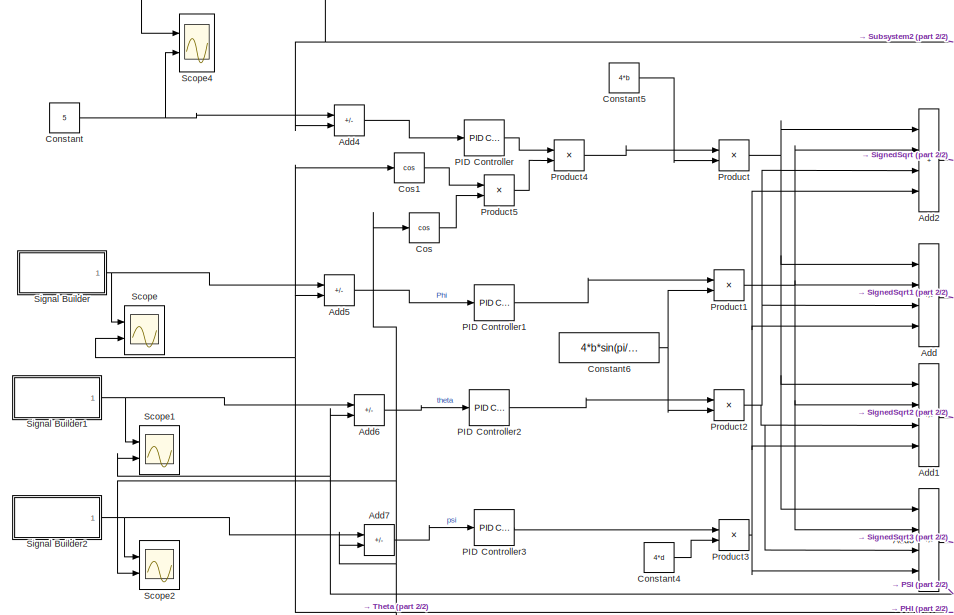
[diagram: root canvas - part 1/2, left side, full height]
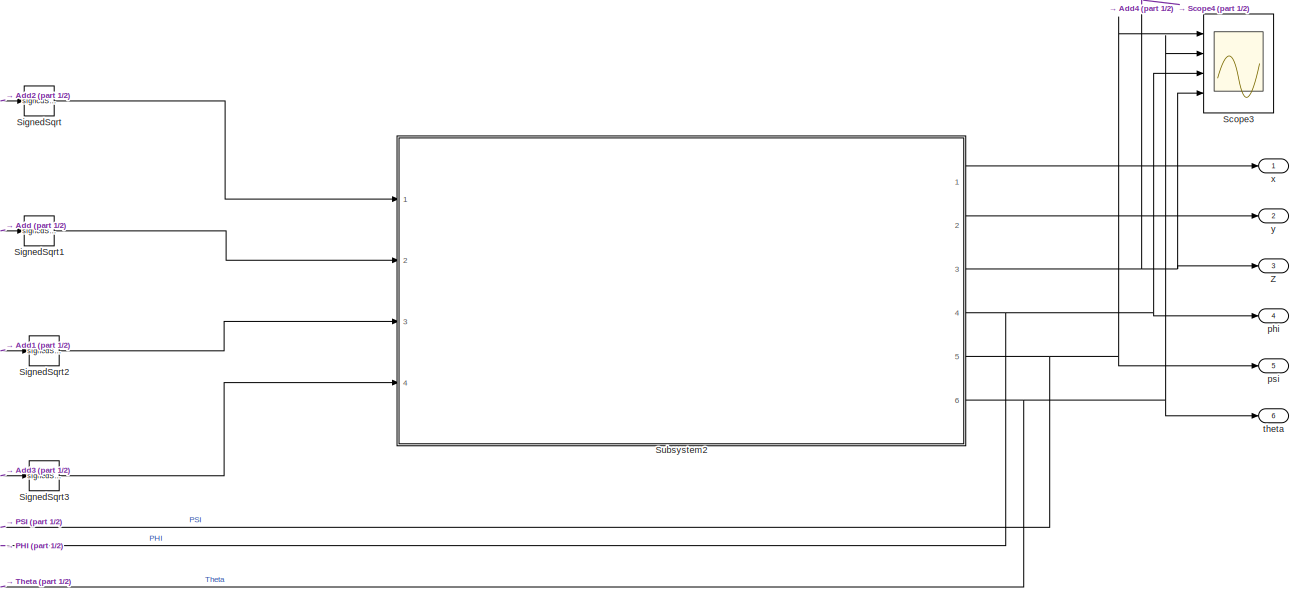
[diagram: root canvas - part 2/2, right side, full height]
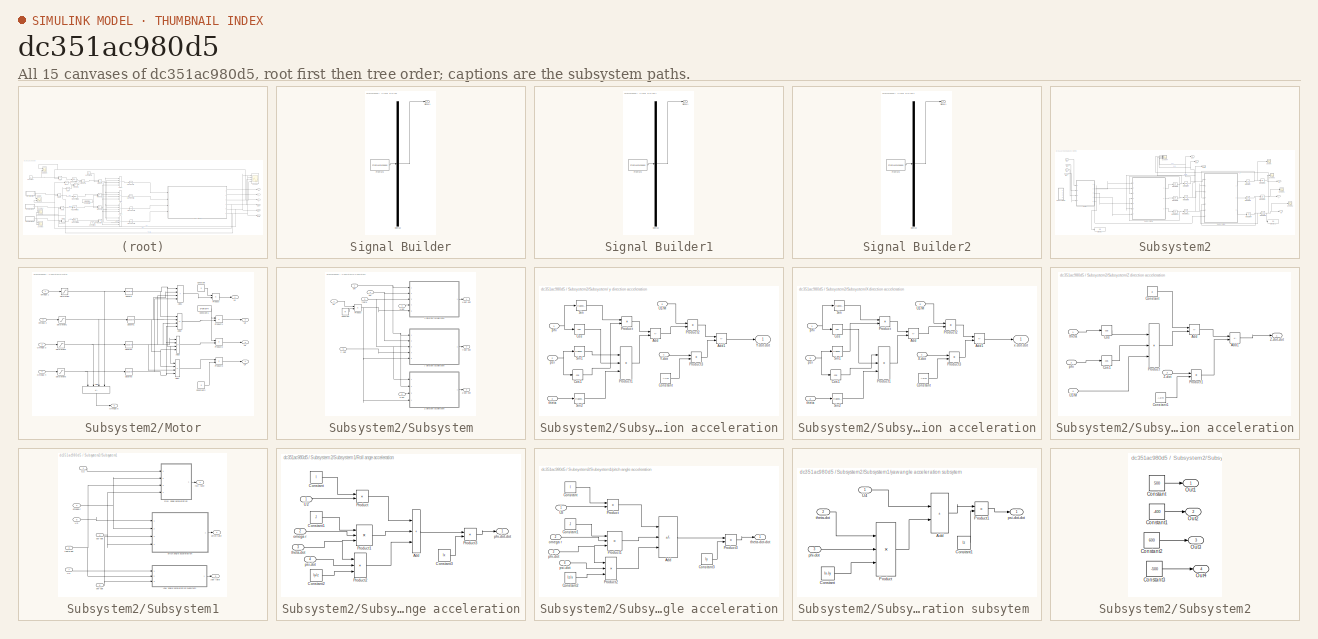
[diagram: thumbnail index - all 15 canvases of the model, root first then tree order]
MODEL slx_dc351ac980d5
KIND model
CONFIG AbsTol = auto
CONFIG EnableMultiTasking = off
CONFIG FixedStep = auto
CONFIG MaxStep = auto
CONFIG MinStep = auto
CONFIG RelTol = 1e-3
CONFIG SampleTimeConstraint = Unconstrained
CONFIG SolverName = VariableStepAuto
CONFIG StartTime = 0.0
CONFIG StopTime = 60
BLOCK [Sum] Add
  IconShape = rectangular
  Inputs = +-+-
  Ports = [4, 1]
BLOCK [Sum] Add1
  IconShape = rectangular
  Inputs = +--+
  Ports = [4, 1]
BLOCK [Sum] Add2
  IconShape = rectangular
  Inputs = ++++
  Ports = [4, 1]
BLOCK [Sum] Add3
  IconShape = rectangular
  Inputs = ++--
  Ports = [4, 1]
BLOCK [Sum] Add4
  IconShape = rectangular
  Inputs = +-
  Ports = [2, 1]
BLOCK [Sum] Add5
  IconShape = rectangular
  Inputs = +-
  Ports = [2, 1]
BLOCK [Sum] Add6
  IconShape = rectangular
  Inputs = +-
  Ports = [2, 1]
BLOCK [Sum] Add7
  IconShape = rectangular
  Inputs = +-
  Ports = [2, 1]
BLOCK [Constant] Constant
  Value = 5
BLOCK [Constant] Constant4
  Value = 4*d
BLOCK [Constant] Constant5
  Value = 4*b
BLOCK [Constant] Constant6
  Value = 4*b*sin(pi/4)*l
BLOCK [Trigonometry] Cos
  Operator = cos
  Ports = [1, 1]
BLOCK [Trigonometry] Cos1
  Operator = cos
  Ports = [1, 1]
BLOCK [Reference] PID Controller  REF=pid_lib/PID Controller
  Ports = [1, 1]
  SourceBlock = pid_lib/PID Controller
  SourceProductBaseCode = SL
  SourceType = PID 1dof
BLOCK [Reference] PID Controller1  REF=pid_lib/PID Controller
  Ports = [1, 1]
  SourceBlock = pid_lib/PID Controller
  SourceProductBaseCode = SL
  SourceType = PID 1dof
BLOCK [Reference] PID Controller2  REF=pid_lib/PID Controller
  Ports = [1, 1]
  SourceBlock = pid_lib/PID Controller
  SourceProductBaseCode = SL
  SourceType = PID 1dof
BLOCK [Reference] PID Controller3  REF=pid_lib/PID Controller
  Ports = [1, 1]
  SourceBlock = pid_lib/PID Controller
  SourceProductBaseCode = SL
  SourceType = PID 1dof
BLOCK [Product] Product
  Inputs = */
  Ports = [2, 1]
BLOCK [Product] Product1
  Inputs = */
  Ports = [2, 1]
BLOCK [Product] Product2
  Inputs = */
  Ports = [2, 1]
BLOCK [Product] Product3
  Inputs = */
  Ports = [2, 1]
BLOCK [Product] Product4
  Inputs = */
  Ports = [2, 1]
BLOCK [Product] Product5
  Ports = [2, 1]
BLOCK [Scope] Scope
  Floating = off
  NumInputPorts = 2
  Ports = [2]
  ScopeSpecificationString = Simulink.scopes.TimeScopeBlockCfg('CurrentConfiguration', extmgr.ConfigurationSet(extmgr.Configuration('Core','General UI',true),extmgr.Configuration('Core','Source UI',true),extmgr.Configuration('Sources','WiredSimulink',true,'DataLoggingVariableName','ScopeData1'),extmgr.Configuration('Visuals','Time Domain',true,'SerializedDisplays',{struct('MinYLimReal','-0.05724','MaxYLimReal','0.27821','YLab...<+1434ch>
BLOCK [Scope] Scope1
  Floating = off
  NumInputPorts = 2
  Ports = [2]
  ScopeSpecificationString = Simulink.scopes.TimeScopeBlockCfg('CurrentConfiguration', extmgr.ConfigurationSet(extmgr.Configuration('Core','General UI',true),extmgr.Configuration('Core','Source UI',true),extmgr.Configuration('Sources','WiredSimulink',true,'DataLoggingVariableName','ScopeData2'),extmgr.Configuration('Visuals','Time Domain',true,'SerializedDisplays',{struct('MinYLimReal','-0.06666','MaxYLimReal','0.25678','YLab...<+1409ch>
BLOCK [Scope] Scope2
  Floating = off
  NumInputPorts = 2
  Ports = [2]
  ScopeSpecificationString = Simulink.scopes.TimeScopeBlockCfg('CurrentConfiguration', extmgr.ConfigurationSet(extmgr.Configuration('Core','General UI',true),extmgr.Configuration('Core','Source UI',true),extmgr.Configuration('Sources','WiredSimulink',true,'DataLoggingVariableName','ScopeData3'),extmgr.Configuration('Visuals','Time Domain',true,'SerializedDisplays',{struct('MinYLimReal','-0.10878','MaxYLimReal','0.64531','YLab...<+1411ch>
BLOCK [Scope] Scope3
  Floating = off
  NumInputPorts = 4
  Ports = [4]
  ScopeSpecificationString = Simulink.scopes.TimeScopeBlockCfg('CurrentConfiguration', extmgr.ConfigurationSet(extmgr.Configuration('Core','General UI',true),extmgr.Configuration('Core','Source UI',true),extmgr.Configuration('Sources','WiredSimulink',true,'DataLoggingVariableName','ScopeData4'),extmgr.Configuration('Visuals','Time Domain',true,'SerializedDisplays',{struct('MinYLimReal','-248116.24795','MaxYLimReal','2233046.2...<+1495ch>
BLOCK [Scope] Scope4
  Floating = off
  NumInputPorts = 2
  Ports = [2]
  ScopeSpecificationString = Simulink.scopes.TimeScopeBlockCfg('CurrentConfiguration', extmgr.ConfigurationSet(extmgr.Configuration('Core','General UI',true),extmgr.Configuration('Core','Source UI',true),extmgr.Configuration('Sources','WiredSimulink',true,'DataLoggingVariableName','ScopeData5'),extmgr.Configuration('Visuals','Time Domain',true,'SerializedDisplays',{struct('MinYLimReal','-0.65301','MaxYLimReal','5.87706','YLab...<+1411ch>
BLOCK [SubSystem] Signal Builder
  ClipboardFcn = sigbuilder_block('clipboard');
  CloseFcn = sigbuilder_block('close');
  ContinueFcn = sigbuilder_block('continue');
  CopyFcn = sigbuilder_block('copy');
  DeleteFcn = sigbuilder_block('delete');
  LoadFcn = sigbuilder_block('load');
  MaskHideContents = on
  ModelCloseFcn = sigbuilder_block('modelClose');
  NameChangeFcn = sigbuilder_block('namechange');
  OpenFcn = sigbuilder_block('open',[367.8 129.6 550.8 400.2 ]);
  PauseFcn = sigbuilder_block('pause');
  Ports = [0, 1]
  PreSaveFcn = sigbuilder_block('preSave');
  RequestExecContextInheritance = off
  StartFcn = sigbuilder_block('start');
  StopFcn = sigbuilder_block('stop');
  Tag = STV Subsys
BLOCK [Demux] Signal Builder/Demux
  DisplayOption = none
  Outputs = 1
  Ports = [1, 1]
  Tag = STV Demux
BLOCK [FromWorkspace] Signal Builder/FromWs
  Tag = STV FromWs
  VariableName = tuvar
BLOCK [Outport] Signal Builder/Signal 1
  Tag = STV Outport
BLOCK [SubSystem] Signal Builder1
  ClipboardFcn = sigbuilder_block('clipboard');
  CloseFcn = sigbuilder_block('close');
  ContinueFcn = sigbuilder_block('continue');
  CopyFcn = sigbuilder_block('copy');
  DeleteFcn = sigbuilder_block('delete');
  LoadFcn = sigbuilder_block('load');
  MaskHideContents = on
  ModelCloseFcn = sigbuilder_block('modelClose');
  NameChangeFcn = sigbuilder_block('namechange');
  OpenFcn = sigbuilder_block('open',[367.8 129.6 550.8 400.2 ]);
  PauseFcn = sigbuilder_block('pause');
  Ports = [0, 1]
  PreSaveFcn = sigbuilder_block('preSave');
  RequestExecContextInheritance = off
  StartFcn = sigbuilder_block('start');
  StopFcn = sigbuilder_block('stop');
  Tag = STV Subsys
BLOCK [Demux] Signal Builder1/Demux
  DisplayOption = none
  Outputs = 1
  Ports = [1, 1]
  Tag = STV Demux
BLOCK [FromWorkspace] Signal Builder1/FromWs
  Tag = STV FromWs
  VariableName = tuvar
BLOCK [Outport] Signal Builder1/Signal 1
  Tag = STV Outport
BLOCK [SubSystem] Signal Builder2
  ClipboardFcn = sigbuilder_block('clipboard');
  CloseFcn = sigbuilder_block('close');
  ContinueFcn = sigbuilder_block('continue');
  CopyFcn = sigbuilder_block('copy');
  DeleteFcn = sigbuilder_block('delete');
  LoadFcn = sigbuilder_block('load');
  MaskHideContents = on
  ModelCloseFcn = sigbuilder_block('modelClose');
  NameChangeFcn = sigbuilder_block('namechange');
  OpenFcn = sigbuilder_block('open',[345.6 111.6 550.8 400.2 ]);
  PauseFcn = sigbuilder_block('pause');
  Ports = [0, 1]
  PreSaveFcn = sigbuilder_block('preSave');
  RequestExecContextInheritance = off
  StartFcn = sigbuilder_block('start');
  StopFcn = sigbuilder_block('stop');
  Tag = STV Subsys
BLOCK [Demux] Signal Builder2/Demux
  DisplayOption = none
  Outputs = 1
  Ports = [1, 1]
  Tag = STV Demux
BLOCK [FromWorkspace] Signal Builder2/FromWs
  Tag = STV FromWs
  VariableName = tuvar
BLOCK [Outport] Signal Builder2/Signal 1
  Tag = STV Outport
BLOCK [Sqrt] SignedSqrt
  IntermediateResultsDataTypeStr = single
  Operator = signedSqrt
  OutputSignalType = real
BLOCK [Sqrt] SignedSqrt1
  IntermediateResultsDataTypeStr = single
  Operator = signedSqrt
  OutputSignalType = real
BLOCK [Sqrt] SignedSqrt2
  IntermediateResultsDataTypeStr = single
  Operator = signedSqrt
  OutputSignalType = real
BLOCK [Sqrt] SignedSqrt3
  IntermediateResultsDataTypeStr = single
  Operator = signedSqrt
  OutputSignalType = real
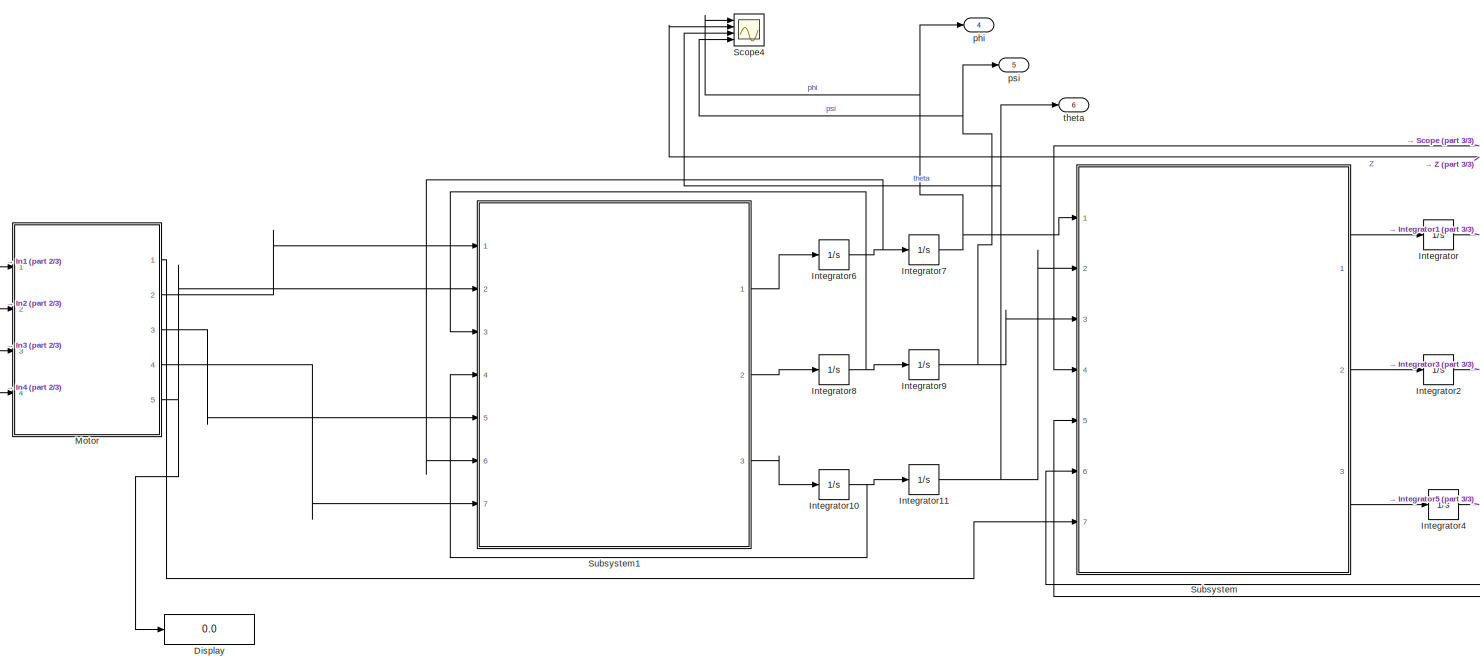
[diagram: Subsystem2 - part 1/3, most of the canvas]
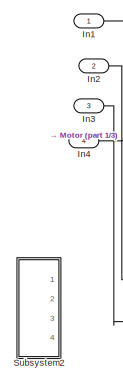
[diagram: Subsystem2 - part 2/3, middle left region]
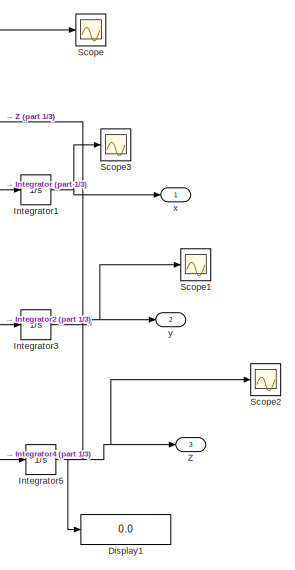
[diagram: Subsystem2 - part 3/3, right side, full height]
BLOCK [SubSystem] Subsystem2
  Ports = [4, 6]
  RequestExecContextInheritance = off
BLOCK [Display] Subsystem2/Display
  Decimation = 1
  Ports = [1]
BLOCK [Display] Subsystem2/Display1
  Decimation = 1
  Ports = [1]
BLOCK [Inport] Subsystem2/In1
BLOCK [Inport] Subsystem2/In2
  Port = 2
BLOCK [Inport] Subsystem2/In3
  Port = 3
BLOCK [Inport] Subsystem2/In4
  Port = 4
BLOCK [Integrator] Subsystem2/Integrator
  Ports = [1, 1]
BLOCK [Integrator] Subsystem2/Integrator1
  Ports = [1, 1]
BLOCK [Integrator] Subsystem2/Integrator10
  Ports = [1, 1]
BLOCK [Integrator] Subsystem2/Integrator11
  Ports = [1, 1]
  WrapState = on
BLOCK [Integrator] Subsystem2/Integrator2
  LimitOutput = on
  Ports = [1, 1]
BLOCK [Integrator] Subsystem2/Integrator3
  Ports = [1, 1]
BLOCK [Integrator] Subsystem2/Integrator4
  Ports = [1, 1]
BLOCK [Integrator] Subsystem2/Integrator5
  LimitOutput = on
  LowerSaturationLimit = 0
  Ports = [1, 1]
BLOCK [Integrator] Subsystem2/Integrator6
  Ports = [1, 1]
BLOCK [Integrator] Subsystem2/Integrator7
  Ports = [1, 1]
  WrapState = on
BLOCK [Integrator] Subsystem2/Integrator8
  Ports = [1, 1]
BLOCK [Integrator] Subsystem2/Integrator9
  Ports = [1, 1]
  WrapState = on
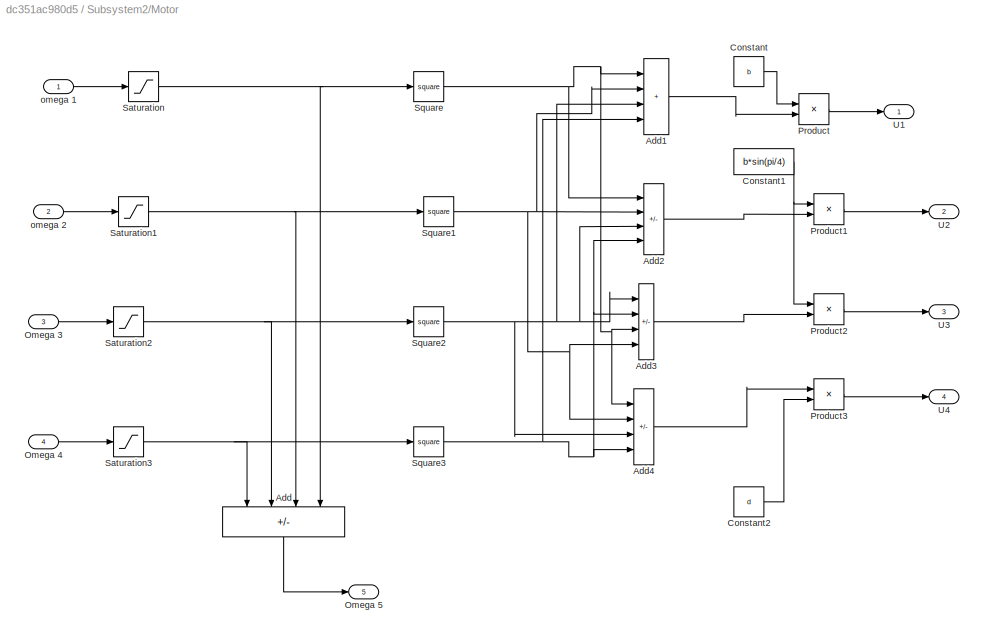
BLOCK [SubSystem] Subsystem2/Motor
  Ports = [4, 5]
  RequestExecContextInheritance = off
BLOCK [Sum] Subsystem2/Motor/Add
  IconShape = rectangular
  Inputs = -+-+
  NameLocation = left
  Ports = [4, 1]
BLOCK [Sum] Subsystem2/Motor/Add1
  IconShape = rectangular
  Inputs = ++++
  Ports = [4, 1]
BLOCK [Sum] Subsystem2/Motor/Add2
  IconShape = rectangular
  Inputs = +--+
  Ports = [4, 1]
BLOCK [Sum] Subsystem2/Motor/Add3
  IconShape = rectangular
  Inputs = --++
  Ports = [4, 1]
BLOCK [Sum] Subsystem2/Motor/Add4
  IconShape = rectangular
  Inputs = +-+-
  Ports = [4, 1]
BLOCK [Constant] Subsystem2/Motor/Constant
  Value = b
BLOCK [Constant] Subsystem2/Motor/Constant1
  Value = b*sin(pi/4)
BLOCK [Constant] Subsystem2/Motor/Constant2
  Value = d
BLOCK [Inport] Subsystem2/Motor/Omega 3
  Port = 3
BLOCK [Inport] Subsystem2/Motor/Omega 4
  Port = 4
BLOCK [Outport] Subsystem2/Motor/Omega 5 
  Port = 5
BLOCK [Product] Subsystem2/Motor/Product
  Ports = [2, 1]
BLOCK [Product] Subsystem2/Motor/Product1
  Ports = [2, 1]
BLOCK [Product] Subsystem2/Motor/Product2
  Ports = [2, 1]
BLOCK [Product] Subsystem2/Motor/Product3
  Ports = [2, 1]
BLOCK [Saturate] Subsystem2/Motor/Saturation
  LowerLimit = -10000
  UpperLimit = 10000
BLOCK [Saturate] Subsystem2/Motor/Saturation1
  LowerLimit = -10000
  UpperLimit = 10000
BLOCK [Saturate] Subsystem2/Motor/Saturation2
  LowerLimit = -10000
  UpperLimit = 10000
BLOCK [Saturate] Subsystem2/Motor/Saturation3
  LowerLimit = -10000
  UpperLimit = 10000
BLOCK [Math] Subsystem2/Motor/Square
  Operator = square
  Ports = [1, 1]
BLOCK [Math] Subsystem2/Motor/Square1
  Operator = square
  Ports = [1, 1]
BLOCK [Math] Subsystem2/Motor/Square2
  Operator = square
  Ports = [1, 1]
BLOCK [Math] Subsystem2/Motor/Square3
  Operator = square
  Ports = [1, 1]
BLOCK [Outport] Subsystem2/Motor/U1
BLOCK [Outport] Subsystem2/Motor/U2
  Port = 2
BLOCK [Outport] Subsystem2/Motor/U3
  Port = 3
BLOCK [Outport] Subsystem2/Motor/U4
  Port = 4
BLOCK [Inport] Subsystem2/Motor/omega 1
BLOCK [Inport] Subsystem2/Motor/omega 2
  Port = 2
BLOCK [Scope] Subsystem2/Scope
  Floating = off
  NumInputPorts = 1
  Ports = [1]
  ScopeSpecificationString = Simulink.scopes.TimeScopeBlockCfg('CurrentConfiguration', extmgr.ConfigurationSet(extmgr.Configuration('Core','General UI',true),extmgr.Configuration('Core','Source UI',true),extmgr.Configuration('Sources','WiredSimulink',true),extmgr.Configuration('Visuals','Time Domain',true,'SerializedDisplays',{struct('MinYLimReal','-1.00000','MaxYLimReal','1.00000','YLabelReal','','MinYLimMag','0.00000','MaxY...<+1330ch>
BLOCK [Scope] Subsystem2/Scope1
  Floating = off
  NumInputPorts = 1
  Ports = [1]
  ScopeSpecificationString = Simulink.scopes.TimeScopeBlockCfg('CurrentConfiguration', extmgr.ConfigurationSet(extmgr.Configuration('Core','General UI',true),extmgr.Configuration('Core','Source UI',true),extmgr.Configuration('Sources','WiredSimulink',true,'DataLoggingVariableName','ScopeData1'),extmgr.Configuration('Visuals','Time Domain',true,'SerializedDisplays',{struct('MinYLimReal','-1.00000','MaxYLimReal','1.00000','YLab...<+1370ch>
BLOCK [Scope] Subsystem2/Scope2
  Floating = off
  NumInputPorts = 1
  Ports = [1]
  ScopeSpecificationString = Simulink.scopes.TimeScopeBlockCfg('CurrentConfiguration', extmgr.ConfigurationSet(extmgr.Configuration('Core','General UI',true),extmgr.Configuration('Core','Source UI',true),extmgr.Configuration('Sources','WiredSimulink',true,'DataLoggingVariableName','ScopeData2'),extmgr.Configuration('Visuals','Time Domain',true,'SerializedDisplays',{struct('MinYLimReal','-7202.51155','MaxYLimReal','64822.60396...<+1386ch>
BLOCK [Scope] Subsystem2/Scope3
  Floating = off
  NumInputPorts = 1
  Ports = [1]
  ScopeSpecificationString = Simulink.scopes.TimeScopeBlockCfg('CurrentConfiguration', extmgr.ConfigurationSet(extmgr.Configuration('Core','General UI',true),extmgr.Configuration('Core','Source UI',true),extmgr.Configuration('Sources','WiredSimulink',true,'DataLoggingVariableName','ScopeData3'),extmgr.Configuration('Visuals','Time Domain',true,'SerializedDisplays',{struct('MinYLimReal','-1.00000','MaxYLimReal','1.00000','YLab...<+1370ch>
BLOCK [Scope] Subsystem2/Scope4
  Floating = off
  NumInputPorts = 4
  Ports = [4]
  ScopeSpecificationString = Simulink.scopes.TimeScopeBlockCfg('CurrentConfiguration', extmgr.ConfigurationSet(extmgr.Configuration('Core','General UI',true,'DisplayFullSourceName',true),extmgr.Configuration('Core','Source UI',true),extmgr.Configuration('Sources','WiredSimulink',true,'DataLoggingVariableName','ScopeData4'),extmgr.Configuration('Visuals','Time Domain',true,'SerializedDisplays',{struct('MinYLimReal','0.88104','...<+1593ch>
BLOCK [SubSystem] Subsystem2/Subsystem
  Ports = [7, 3]
  RequestExecContextInheritance = off
BLOCK [SubSystem] Subsystem2/Subsystem/ y direction acceleration
  Ports = [5, 1]
  RequestExecContextInheritance = off
BLOCK [Sum] Subsystem2/Subsystem/ y direction acceleration/Add
  IconShape = rectangular
  Inputs = -+
  Ports = [2, 1]
BLOCK [Sum] Subsystem2/Subsystem/ y direction acceleration/Add1
  IconShape = rectangular
  Inputs = +-
  Ports = [2, 1]
BLOCK [Constant] Subsystem2/Subsystem/ y direction acceleration/Constant
  Value = Ay/m
BLOCK [Trigonometry] Subsystem2/Subsystem/ y direction acceleration/Cos
  Operator = cos
  Ports = [1, 1]
BLOCK [Trigonometry] Subsystem2/Subsystem/ y direction acceleration/Cos1
  Operator = cos
  Ports = [1, 1]
BLOCK [Product] Subsystem2/Subsystem/ y direction acceleration/Product
  Ports = [2, 1]
BLOCK [Product] Subsystem2/Subsystem/ y direction acceleration/Product1
  Inputs = 3
  Ports = [3, 1]
BLOCK [Product] Subsystem2/Subsystem/ y direction acceleration/Product2
  Ports = [2, 1]
BLOCK [Product] Subsystem2/Subsystem/ y direction acceleration/Product3
  Ports = [2, 1]
BLOCK [Trigonometry] Subsystem2/Subsystem/ y direction acceleration/Sin
  Ports = [1, 1]
BLOCK [Trigonometry] Subsystem2/Subsystem/ y direction acceleration/Sin1
  Ports = [1, 1]
BLOCK [Trigonometry] Subsystem2/Subsystem/ y direction acceleration/Sin2
  Ports = [1, 1]
BLOCK [Inport] Subsystem2/Subsystem/ y direction acceleration/U1//M
  Port = 5
BLOCK [Inport] Subsystem2/Subsystem/ y direction acceleration/Y-dot
  Port = 4
BLOCK [Outport] Subsystem2/Subsystem/ y direction acceleration/Y-dot-dot
BLOCK [Inport] Subsystem2/Subsystem/ y direction acceleration/phi
BLOCK [Inport] Subsystem2/Subsystem/ y direction acceleration/psi
  Port = 2
BLOCK [Inport] Subsystem2/Subsystem/ y direction acceleration/theta
  Port = 3
BLOCK [Constant] Subsystem2/Subsystem/Constant
  Value = m
BLOCK [Product] Subsystem2/Subsystem/Product
  Inputs = */
  Ports = [2, 1]
BLOCK [Inport] Subsystem2/Subsystem/U1
  Port = 7
BLOCK [SubSystem] Subsystem2/Subsystem/X direction acceleration
  Ports = [5, 1]
  RequestExecContextInheritance = off
BLOCK [Sum] Subsystem2/Subsystem/X direction acceleration/Add
  IconShape = rectangular
  Inputs = +-
  Ports = [2, 1]
BLOCK [Sum] Subsystem2/Subsystem/X direction acceleration/Add1
  IconShape = rectangular
  Inputs = +-
  Ports = [2, 1]
BLOCK [Constant] Subsystem2/Subsystem/X direction acceleration/Constant
  Value = Ax/m
BLOCK [Trigonometry] Subsystem2/Subsystem/X direction acceleration/Cos
  Operator = cos
  Ports = [1, 1]
BLOCK [Trigonometry] Subsystem2/Subsystem/X direction acceleration/Cos1
  Operator = cos
  Ports = [1, 1]
BLOCK [Product] Subsystem2/Subsystem/X direction acceleration/Product
  Ports = [2, 1]
BLOCK [Product] Subsystem2/Subsystem/X direction acceleration/Product1
  Inputs = 3
  Ports = [3, 1]
BLOCK [Product] Subsystem2/Subsystem/X direction acceleration/Product2
  Ports = [2, 1]
BLOCK [Product] Subsystem2/Subsystem/X direction acceleration/Product3
  Ports = [2, 1]
BLOCK [Trigonometry] Subsystem2/Subsystem/X direction acceleration/Sin
  Ports = [1, 1]
BLOCK [Trigonometry] Subsystem2/Subsystem/X direction acceleration/Sin1
  Ports = [1, 1]
BLOCK [Trigonometry] Subsystem2/Subsystem/X direction acceleration/Sin2
  Ports = [1, 1]
BLOCK [Inport] Subsystem2/Subsystem/X direction acceleration/U1//M
  Port = 5
BLOCK [Inport] Subsystem2/Subsystem/X direction acceleration/X-dot
  Port = 4
BLOCK [Inport] Subsystem2/Subsystem/X direction acceleration/phi
BLOCK [Inport] Subsystem2/Subsystem/X direction acceleration/psi
  Port = 2
BLOCK [Inport] Subsystem2/Subsystem/X direction acceleration/theta
  Port = 3
BLOCK [Outport] Subsystem2/Subsystem/X direction acceleration/x-dot-dot
BLOCK [Inport] Subsystem2/Subsystem/X-dot
  Port = 4
BLOCK [Outport] Subsystem2/Subsystem/X-dot-dot
BLOCK [Inport] Subsystem2/Subsystem/Y -dot
  Port = 5
BLOCK [Outport] Subsystem2/Subsystem/Y-dot-dot
  Port = 2
BLOCK [SubSystem] Subsystem2/Subsystem/Z direction acceleration
  Ports = [4, 1]
  RequestExecContextInheritance = off
BLOCK [Sum] Subsystem2/Subsystem/Z direction acceleration/Add
  IconShape = rectangular
  Inputs = -+
  Ports = [2, 1]
BLOCK [Sum] Subsystem2/Subsystem/Z direction acceleration/Add1
  IconShape = rectangular
  Inputs = +-
  Ports = [2, 1]
BLOCK [Constant] Subsystem2/Subsystem/Z direction acceleration/Constant
  Value = g
BLOCK [Constant] Subsystem2/Subsystem/Z direction acceleration/Constant1
  Value = Az/m
BLOCK [Trigonometry] Subsystem2/Subsystem/Z direction acceleration/Cos
  Operator = cos
  Ports = [1, 1]
BLOCK [Trigonometry] Subsystem2/Subsystem/Z direction acceleration/Cos1
  Operator = cos
  Ports = [1, 1]
BLOCK [Product] Subsystem2/Subsystem/Z direction acceleration/Product
  Inputs = 3
  Ports = [3, 1]
BLOCK [Product] Subsystem2/Subsystem/Z direction acceleration/Product1
  Ports = [2, 1]
BLOCK [Inport] Subsystem2/Subsystem/Z direction acceleration/U1//M
  Port = 4
BLOCK [Inport] Subsystem2/Subsystem/Z direction acceleration/Z-dot
  Port = 3
BLOCK [Outport] Subsystem2/Subsystem/Z direction acceleration/Z-dot-dot
BLOCK [Inport] Subsystem2/Subsystem/Z direction acceleration/phi
  Port = 2
BLOCK [Inport] Subsystem2/Subsystem/Z direction acceleration/theta
BLOCK [Inport] Subsystem2/Subsystem/Z-dot
  Port = 6
BLOCK [Outport] Subsystem2/Subsystem/Z-dot-dot
  Port = 3
BLOCK [Inport] Subsystem2/Subsystem/phi
BLOCK [Inport] Subsystem2/Subsystem/psi
  Port = 2
BLOCK [Inport] Subsystem2/Subsystem/theta
  Port = 3
BLOCK [SubSystem] Subsystem2/Subsystem1
  Ports = [7, 3]
  RequestExecContextInheritance = off
BLOCK [SubSystem] Subsystem2/Subsystem1/Roll ange acceleration
  Ports = [4, 1]
  RequestExecContextInheritance = off
BLOCK [Sum] Subsystem2/Subsystem1/Roll ange acceleration/Add
  IconShape = rectangular
  Inputs = +++
  Ports = [3, 1]
BLOCK [Constant] Subsystem2/Subsystem1/Roll ange acceleration/Constant
  Value = l
BLOCK [Constant] Subsystem2/Subsystem1/Roll ange acceleration/Constant1
  Value = J
BLOCK [Constant] Subsystem2/Subsystem1/Roll ange acceleration/Constant2
  Value = Iy-Iz
BLOCK [Constant] Subsystem2/Subsystem1/Roll ange acceleration/Constant3
  Value = Ix
BLOCK [Product] Subsystem2/Subsystem1/Roll ange acceleration/Product
  Ports = [2, 1]
BLOCK [Product] Subsystem2/Subsystem1/Roll ange acceleration/Product1
  Inputs = 3
  Ports = [3, 1]
BLOCK [Product] Subsystem2/Subsystem1/Roll ange acceleration/Product2
  Inputs = 3
  Ports = [3, 1]
BLOCK [Product] Subsystem2/Subsystem1/Roll ange acceleration/Product3
  Inputs = */
  Ports = [2, 1]
BLOCK [Inport] Subsystem2/Subsystem1/Roll ange acceleration/U2
BLOCK [Inport] Subsystem2/Subsystem1/Roll ange acceleration/omega r
  Port = 2
BLOCK [Outport] Subsystem2/Subsystem1/Roll ange acceleration/phi-dot-dot
BLOCK [Inport] Subsystem2/Subsystem1/Roll ange acceleration/psi-dot
  Port = 4
BLOCK [Inport] Subsystem2/Subsystem1/Roll ange acceleration/theta-dot
  Port = 3
BLOCK [Inport] Subsystem2/Subsystem1/U2
BLOCK [Inport] Subsystem2/Subsystem1/U3
  Port = 5
BLOCK [Inport] Subsystem2/Subsystem1/U4
  Port = 7
BLOCK [Inport] Subsystem2/Subsystem1/omega-r
  Port = 2
BLOCK [Inport] Subsystem2/Subsystem1/phi-dot
  Port = 6
BLOCK [SubSystem] Subsystem2/Subsystem1/pitch angle acceleration
  Ports = [4, 1]
  RequestExecContextInheritance = off
BLOCK [Sum] Subsystem2/Subsystem1/pitch angle acceleration/Add
  IconShape = rectangular
  Inputs = +-+
  Ports = [3, 1]
BLOCK [Constant] Subsystem2/Subsystem1/pitch angle acceleration/Constant
  Value = l
BLOCK [Constant] Subsystem2/Subsystem1/pitch angle acceleration/Constant1
  Value = J
BLOCK [Constant] Subsystem2/Subsystem1/pitch angle acceleration/Constant2
  Value = Iz-Ix
BLOCK [Constant] Subsystem2/Subsystem1/pitch angle acceleration/Constant3
  Value = Iy
BLOCK [Product] Subsystem2/Subsystem1/pitch angle acceleration/Product
  Ports = [2, 1]
BLOCK [Product] Subsystem2/Subsystem1/pitch angle acceleration/Product1
  Inputs = 3
  Ports = [3, 1]
BLOCK [Product] Subsystem2/Subsystem1/pitch angle acceleration/Product2
  Inputs = 3
  Ports = [3, 1]
BLOCK [Product] Subsystem2/Subsystem1/pitch angle acceleration/Product3
  Inputs = */
  Ports = [2, 1]
BLOCK [Inport] Subsystem2/Subsystem1/pitch angle acceleration/U3
BLOCK [Inport] Subsystem2/Subsystem1/pitch angle acceleration/omega r
  Port = 2
BLOCK [Inport] Subsystem2/Subsystem1/pitch angle acceleration/phi-dot
  Port = 3
BLOCK [Inport] Subsystem2/Subsystem1/pitch angle acceleration/psi-dot
  Port = 4
BLOCK [Outport] Subsystem2/Subsystem1/pitch angle acceleration/theta-dot-dot
BLOCK [Outport] Subsystem2/Subsystem1/pitch rate
  Port = 2
BLOCK [Inport] Subsystem2/Subsystem1/psi-dot
  Port = 4
BLOCK [Outport] Subsystem2/Subsystem1/roll rate
BLOCK [Inport] Subsystem2/Subsystem1/theta-dot
  Port = 3
BLOCK [SubSystem] Subsystem2/Subsystem1/yaw angle acceleration subsytem 
  Ports = [3, 1]
  RequestExecContextInheritance = off
BLOCK [Sum] Subsystem2/Subsystem1/yaw angle acceleration subsytem /Add
  IconShape = rectangular
  Ports = [2, 1]
BLOCK [Constant] Subsystem2/Subsystem1/yaw angle acceleration subsytem /Constant
  Value = Ix-Iy
BLOCK [Constant] Subsystem2/Subsystem1/yaw angle acceleration subsytem /Constant1
  Value = Iz
BLOCK [Product] Subsystem2/Subsystem1/yaw angle acceleration subsytem /Product
  Inputs = 3
  Ports = [3, 1]
BLOCK [Product] Subsystem2/Subsystem1/yaw angle acceleration subsytem /Product1
  Inputs = */
  Ports = [2, 1]
BLOCK [Inport] Subsystem2/Subsystem1/yaw angle acceleration subsytem /U4
BLOCK [Inport] Subsystem2/Subsystem1/yaw angle acceleration subsytem /phi-dot
  Port = 3
BLOCK [Outport] Subsystem2/Subsystem1/yaw angle acceleration subsytem /psi-dot-dot
BLOCK [Inport] Subsystem2/Subsystem1/yaw angle acceleration subsytem /theta-dot
  Port = 2
BLOCK [Outport] Subsystem2/Subsystem1/yaw rate
  Port = 3
BLOCK [SubSystem] Subsystem2/Subsystem2
  Commented = on
  Ports = [0, 4]
  RequestExecContextInheritance = off
BLOCK [Constant] Subsystem2/Subsystem2/Constant
  Value = 500
BLOCK [Constant] Subsystem2/Subsystem2/Constant1
  Value = -400
BLOCK [Constant] Subsystem2/Subsystem2/Constant2
  Value = 600
BLOCK [Constant] Subsystem2/Subsystem2/Constant3
  Value = -500
BLOCK [Outport] Subsystem2/Subsystem2/Out1
BLOCK [Outport] Subsystem2/Subsystem2/Out2
  Port = 2
BLOCK [Outport] Subsystem2/Subsystem2/Out3
  Port = 3
BLOCK [Outport] Subsystem2/Subsystem2/Out4
  Port = 4
BLOCK [Outport] Subsystem2/Z
  Port = 3
BLOCK [Outport] Subsystem2/phi
  Port = 4
BLOCK [Outport] Subsystem2/psi
  Port = 5
BLOCK [Outport] Subsystem2/theta
  Port = 6
BLOCK [Outport] Subsystem2/x
BLOCK [Outport] Subsystem2/y
  Port = 2
BLOCK [Outport] Z
  Port = 3
BLOCK [Outport] phi
  Port = 4
BLOCK [Outport] psi
  Port = 5
BLOCK [Outport] theta
  Port = 6
BLOCK [Outport] x
BLOCK [Outport] y
  Port = 2
LINE Add1:1 -> SignedSqrt2:1
LINE Add2:1 -> SignedSqrt:1
LINE Add3:1 -> SignedSqrt3:1
LINE Add4:1 -> PID Controller:1
LINE Add5:1 -> PID Controller1:1
LINE Add6:1 -> PID Controller2:1
LINE Add7:1 -> PID Controller3:1
LINE Add:1 -> SignedSqrt1:1
LINE Constant4:1 -> Product3:2
LINE Constant5:1 -> Product:2
NET Constant6:1 -> Product1:2, Product2:2
NET Constant:1 -> Add4:1, Scope4:2
LINE Cos1:1 -> Product5:1
LINE Cos:1 -> Product5:2
LINE PID Controller1:1 -> Product1:1
LINE PID Controller2:1 -> Product2:1
LINE PID Controller3:1 -> Product3:1
LINE PID Controller:1 -> Product4:1
NET Product1:1 -> Add1:2, Add2:2, Add3:2, Add:2
NET Product2:1 -> Add1:3, Add2:3, Add3:3, Add:3
NET Product3:1 -> Add1:4, Add2:4, Add3:4, Add:4
LINE Product4:1 -> Product:1
LINE Product5:1 -> Product4:2
NET Product:1 -> Add1:1, Add2:1, Add3:1, Add:1
NET Signal Builder1:1 -> Add6:1, Scope1:1
NET Signal Builder2:1 -> Add7:1, Scope2:1
NET Signal Builder:1 -> Add5:1, Scope:1
LINE SignedSqrt1:1 -> Subsystem2:2
LINE SignedSqrt2:1 -> Subsystem2:3
LINE SignedSqrt3:1 -> Subsystem2:4
LINE SignedSqrt:1 -> Subsystem2:1
LINE Subsystem2/In1:1 -> Subsystem2/Motor:1
LINE Subsystem2/In2:1 -> Subsystem2/Motor:2
LINE Subsystem2/In3:1 -> Subsystem2/Motor:3
LINE Subsystem2/In4:1 -> Subsystem2/Motor:4
NET Subsystem2/Integrator10:1 -> Subsystem2/Integrator11:1, Subsystem2/Subsystem1:4
NET Subsystem2/Integrator11:1 -> Subsystem2/Scope4:3, Subsystem2/Subsystem:2, Subsystem2/theta:1
NET Subsystem2/Integrator1:1 -> Subsystem2/Scope3:1, Subsystem2/x:1
NET Subsystem2/Integrator2:1 -> Subsystem2/Integrator3:1, Subsystem2/Subsystem:5
NET Subsystem2/Integrator3:1 -> Subsystem2/Scope1:1, Subsystem2/y:1
NET Subsystem2/Integrator4:1 -> Subsystem2/Integrator5:1, Subsystem2/Subsystem:6
NET Subsystem2/Integrator5:1 -> Subsystem2/Display1:1, Subsystem2/Scope2:1, Subsystem2/Scope4:2, Subsystem2/Z:1
NET Subsystem2/Integrator6:1 -> Subsystem2/Integrator7:1, Subsystem2/Subsystem1:6
NET Subsystem2/Integrator7:1 -> Subsystem2/Scope4:1, Subsystem2/Subsystem:1, Subsystem2/phi:1
NET Subsystem2/Integrator8:1 -> Subsystem2/Integrator9:1, Subsystem2/Subsystem1:3
NET Subsystem2/Integrator9:1 -> Subsystem2/Scope4:4, Subsystem2/Subsystem:3, Subsystem2/psi:1
NET Subsystem2/Integrator:1 -> Subsystem2/Integrator1:1, Subsystem2/Scope:1, Subsystem2/Subsystem:4
LINE Subsystem2/Motor/Add1:1 -> Subsystem2/Motor/Product:2
LINE Subsystem2/Motor/Add2:1 -> Subsystem2/Motor/Product1:2
LINE Subsystem2/Motor/Add3:1 -> Subsystem2/Motor/Product2:2
LINE Subsystem2/Motor/Add4:1 -> Subsystem2/Motor/Product3:1
LINE Subsystem2/Motor/Add:1 -> Subsystem2/Motor/Omega 5 :1
NET Subsystem2/Motor/Constant1:1 -> Subsystem2/Motor/Product1:1, Subsystem2/Motor/Product2:1
LINE Subsystem2/Motor/Constant2:1 -> Subsystem2/Motor/Product3:2
LINE Subsystem2/Motor/Constant:1 -> Subsystem2/Motor/Product:1
LINE Subsystem2/Motor/Omega 3:1 -> Subsystem2/Motor/Saturation2:1
LINE Subsystem2/Motor/Omega 4:1 -> Subsystem2/Motor/Saturation3:1
LINE Subsystem2/Motor/Product1:1 -> Subsystem2/Motor/U2:1
LINE Subsystem2/Motor/Product2:1 -> Subsystem2/Motor/U3:1
LINE Subsystem2/Motor/Product3:1 -> Subsystem2/Motor/U4:1
LINE Subsystem2/Motor/Product:1 -> Subsystem2/Motor/U1:1
NET Subsystem2/Motor/Saturation1:1 -> Subsystem2/Motor/Add:3, Subsystem2/Motor/Square1:1
NET Subsystem2/Motor/Saturation2:1 -> Subsystem2/Motor/Add:2, Subsystem2/Motor/Square2:1
NET Subsystem2/Motor/Saturation3:1 -> Subsystem2/Motor/Add:1, Subsystem2/Motor/Square3:1
NET Subsystem2/Motor/Saturation:1 -> Subsystem2/Motor/Add:4, Subsystem2/Motor/Square:1
NET Subsystem2/Motor/Square1:1 -> Subsystem2/Motor/Add1:2, Subsystem2/Motor/Add2:2, Subsystem2/Motor/Add3:4, Subsystem2/Motor/Add4:2
NET Subsystem2/Motor/Square2:1 -> Subsystem2/Motor/Add1:3, Subsystem2/Motor/Add2:3, Subsystem2/Motor/Add3:1, Subsystem2/Motor/Add4:3
NET Subsystem2/Motor/Square3:1 -> Subsystem2/Motor/Add1:4, Subsystem2/Motor/Add2:4, Subsystem2/Motor/Add3:2, Subsystem2/Motor/Add4:4
NET Subsystem2/Motor/Square:1 -> Subsystem2/Motor/Add1:1, Subsystem2/Motor/Add2:1, Subsystem2/Motor/Add3:3, Subsystem2/Motor/Add4:1
LINE Subsystem2/Motor/omega 1:1 -> Subsystem2/Motor/Saturation:1
LINE Subsystem2/Motor/omega 2:1 -> Subsystem2/Motor/Saturation1:1
LINE Subsystem2/Motor:1 -> Subsystem2/Subsystem:7
LINE Subsystem2/Motor:2 -> Subsystem2/Subsystem1:1
LINE Subsystem2/Motor:3 -> Subsystem2/Subsystem1:5
LINE Subsystem2/Motor:4 -> Subsystem2/Subsystem1:7
NET Subsystem2/Motor:5 -> Subsystem2/Display:1, Subsystem2/Subsystem1:2
LINE Subsystem2/Subsystem/ y direction acceleration/Add1:1 -> Subsystem2/Subsystem/ y direction acceleration/Y-dot-dot:1
LINE Subsystem2/Subsystem/ y direction acceleration/Add:1 -> Subsystem2/Subsystem/ y direction acceleration/Product2:2
LINE Subsystem2/Subsystem/ y direction acceleration/Constant:1 -> Subsystem2/Subsystem/ y direction acceleration/Product3:2
LINE Subsystem2/Subsystem/ y direction acceleration/Cos1:1 -> Subsystem2/Subsystem/ y direction acceleration/Product:2
LINE Subsystem2/Subsystem/ y direction acceleration/Cos:1 -> Subsystem2/Subsystem/ y direction acceleration/Product1:2
LINE Subsystem2/Subsystem/ y direction acceleration/Product1:1 -> Subsystem2/Subsystem/ y direction acceleration/Add:2
LINE Subsystem2/Subsystem/ y direction acceleration/Product2:1 -> Subsystem2/Subsystem/ y direction acceleration/Add1:1
LINE Subsystem2/Subsystem/ y direction acceleration/Product3:1 -> Subsystem2/Subsystem/ y direction acceleration/Add1:2
LINE Subsystem2/Subsystem/ y direction acceleration/Product:1 -> Subsystem2/Subsystem/ y direction acceleration/Add:1
LINE Subsystem2/Subsystem/ y direction acceleration/Sin1:1 -> Subsystem2/Subsystem/ y direction acceleration/Product1:1
LINE Subsystem2/Subsystem/ y direction acceleration/Sin2:1 -> Subsystem2/Subsystem/ y direction acceleration/Product1:3
LINE Subsystem2/Subsystem/ y direction acceleration/Sin:1 -> Subsystem2/Subsystem/ y direction acceleration/Product:1
LINE Subsystem2/Subsystem/ y direction acceleration/U1//M:1 -> Subsystem2/Subsystem/ y direction acceleration/Product2:1
LINE Subsystem2/Subsystem/ y direction acceleration/Y-dot:1 -> Subsystem2/Subsystem/ y direction acceleration/Product3:1
NET Subsystem2/Subsystem/ y direction acceleration/phi:1 -> Subsystem2/Subsystem/ y direction acceleration/Cos:1, Subsystem2/Subsystem/ y direction acceleration/Sin:1
NET Subsystem2/Subsystem/ y direction acceleration/psi:1 -> Subsystem2/Subsystem/ y direction acceleration/Cos1:1, Subsystem2/Subsystem/ y direction acceleration/Sin1:1
LINE Subsystem2/Subsystem/ y direction acceleration/theta:1 -> Subsystem2/Subsystem/ y direction acceleration/Sin2:1
LINE Subsystem2/Subsystem/ y direction acceleration:1 -> Subsystem2/Subsystem/Y-dot-dot:1
LINE Subsystem2/Subsystem/Constant:1 -> Subsystem2/Subsystem/Product:2
NET Subsystem2/Subsystem/Product:1 -> Subsystem2/Subsystem/ y direction acceleration:5, Subsystem2/Subsystem/X direction acceleration:5, Subsystem2/Subsystem/Z direction acceleration:4
LINE Subsystem2/Subsystem/U1:1 -> Subsystem2/Subsystem/Product:1
LINE Subsystem2/Subsystem/X direction acceleration/Add1:1 -> Subsystem2/Subsystem/X direction acceleration/x-dot-dot:1
LINE Subsystem2/Subsystem/X direction acceleration/Add:1 -> Subsystem2/Subsystem/X direction acceleration/Product2:2
LINE Subsystem2/Subsystem/X direction acceleration/Constant:1 -> Subsystem2/Subsystem/X direction acceleration/Product3:2
LINE Subsystem2/Subsystem/X direction acceleration/Cos1:1 -> Subsystem2/Subsystem/X direction acceleration/Product1:1
LINE Subsystem2/Subsystem/X direction acceleration/Cos:1 -> Subsystem2/Subsystem/X direction acceleration/Product1:2
LINE Subsystem2/Subsystem/X direction acceleration/Product1:1 -> Subsystem2/Subsystem/X direction acceleration/Add:2
LINE Subsystem2/Subsystem/X direction acceleration/Product2:1 -> Subsystem2/Subsystem/X direction acceleration/Add1:1
LINE Subsystem2/Subsystem/X direction acceleration/Product3:1 -> Subsystem2/Subsystem/X direction acceleration/Add1:2
LINE Subsystem2/Subsystem/X direction acceleration/Product:1 -> Subsystem2/Subsystem/X direction acceleration/Add:1
LINE Subsystem2/Subsystem/X direction acceleration/Sin1:1 -> Subsystem2/Subsystem/X direction acceleration/Product:2
LINE Subsystem2/Subsystem/X direction acceleration/Sin2:1 -> Subsystem2/Subsystem/X direction acceleration/Product1:3
LINE Subsystem2/Subsystem/X direction acceleration/Sin:1 -> Subsystem2/Subsystem/X direction acceleration/Product:1
LINE Subsystem2/Subsystem/X direction acceleration/U1//M:1 -> Subsystem2/Subsystem/X direction acceleration/Product2:1
LINE Subsystem2/Subsystem/X direction acceleration/X-dot:1 -> Subsystem2/Subsystem/X direction acceleration/Product3:1
NET Subsystem2/Subsystem/X direction acceleration/phi:1 -> Subsystem2/Subsystem/X direction acceleration/Cos:1, Subsystem2/Subsystem/X direction acceleration/Sin:1
NET Subsystem2/Subsystem/X direction acceleration/psi:1 -> Subsystem2/Subsystem/X direction acceleration/Cos1:1, Subsystem2/Subsystem/X direction acceleration/Sin1:1
LINE Subsystem2/Subsystem/X direction acceleration/theta:1 -> Subsystem2/Subsystem/X direction acceleration/Sin2:1
LINE Subsystem2/Subsystem/X direction acceleration:1 -> Subsystem2/Subsystem/X-dot-dot:1
LINE Subsystem2/Subsystem/X-dot:1 -> Subsystem2/Subsystem/X direction acceleration:4
LINE Subsystem2/Subsystem/Y -dot:1 -> Subsystem2/Subsystem/ y direction acceleration:4
LINE Subsystem2/Subsystem/Z direction acceleration/Add1:1 -> Subsystem2/Subsystem/Z direction acceleration/Z-dot-dot:1
LINE Subsystem2/Subsystem/Z direction acceleration/Add:1 -> Subsystem2/Subsystem/Z direction acceleration/Add1:1
LINE Subsystem2/Subsystem/Z direction acceleration/Constant1:1 -> Subsystem2/Subsystem/Z direction acceleration/Product1:2
LINE Subsystem2/Subsystem/Z direction acceleration/Constant:1 -> Subsystem2/Subsystem/Z direction acceleration/Add:1
LINE Subsystem2/Subsystem/Z direction acceleration/Cos1:1 -> Subsystem2/Subsystem/Z direction acceleration/Product:2
LINE Subsystem2/Subsystem/Z direction acceleration/Cos:1 -> Subsystem2/Subsystem/Z direction acceleration/Product:1
LINE Subsystem2/Subsystem/Z direction acceleration/Product1:1 -> Subsystem2/Subsystem/Z direction acceleration/Add1:2
LINE Subsystem2/Subsystem/Z direction acceleration/Product:1 -> Subsystem2/Subsystem/Z direction acceleration/Add:2
LINE Subsystem2/Subsystem/Z direction acceleration/U1//M:1 -> Subsystem2/Subsystem/Z direction acceleration/Product:3
LINE Subsystem2/Subsystem/Z direction acceleration/Z-dot:1 -> Subsystem2/Subsystem/Z direction acceleration/Product1:1
LINE Subsystem2/Subsystem/Z direction acceleration/phi:1 -> Subsystem2/Subsystem/Z direction acceleration/Cos1:1
LINE Subsystem2/Subsystem/Z direction acceleration/theta:1 -> Subsystem2/Subsystem/Z direction acceleration/Cos:1
LINE Subsystem2/Subsystem/Z direction acceleration:1 -> Subsystem2/Subsystem/Z-dot-dot:1
LINE Subsystem2/Subsystem/Z-dot:1 -> Subsystem2/Subsystem/Z direction acceleration:3
NET Subsystem2/Subsystem/phi:1 -> Subsystem2/Subsystem/ y direction acceleration:1, Subsystem2/Subsystem/X direction acceleration:1, Subsystem2/Subsystem/Z direction acceleration:2
NET Subsystem2/Subsystem/psi:1 -> Subsystem2/Subsystem/ y direction acceleration:2, Subsystem2/Subsystem/X direction acceleration:2
NET Subsystem2/Subsystem/theta:1 -> Subsystem2/Subsystem/ y direction acceleration:3, Subsystem2/Subsystem/X direction acceleration:3, Subsystem2/Subsystem/Z direction acceleration:1
LINE Subsystem2/Subsystem1/Roll ange acceleration/Add:1 -> Subsystem2/Subsystem1/Roll ange acceleration/Product3:1
LINE Subsystem2/Subsystem1/Roll ange acceleration/Constant1:1 -> Subsystem2/Subsystem1/Roll ange acceleration/Product1:1
LINE Subsystem2/Subsystem1/Roll ange acceleration/Constant2:1 -> Subsystem2/Subsystem1/Roll ange acceleration/Product2:3
LINE Subsystem2/Subsystem1/Roll ange acceleration/Constant3:1 -> Subsystem2/Subsystem1/Roll ange acceleration/Product3:2
LINE Subsystem2/Subsystem1/Roll ange acceleration/Constant:1 -> Subsystem2/Subsystem1/Roll ange acceleration/Product:1
LINE Subsystem2/Subsystem1/Roll ange acceleration/Product1:1 -> Subsystem2/Subsystem1/Roll ange acceleration/Add:2
LINE Subsystem2/Subsystem1/Roll ange acceleration/Product2:1 -> Subsystem2/Subsystem1/Roll ange acceleration/Add:3
LINE Subsystem2/Subsystem1/Roll ange acceleration/Product3:1 -> Subsystem2/Subsystem1/Roll ange acceleration/phi-dot-dot:1
LINE Subsystem2/Subsystem1/Roll ange acceleration/Product:1 -> Subsystem2/Subsystem1/Roll ange acceleration/Add:1
LINE Subsystem2/Subsystem1/Roll ange acceleration/U2:1 -> Subsystem2/Subsystem1/Roll ange acceleration/Product:2
LINE Subsystem2/Subsystem1/Roll ange acceleration/omega r:1 -> Subsystem2/Subsystem1/Roll ange acceleration/Product1:2
LINE Subsystem2/Subsystem1/Roll ange acceleration/psi-dot:1 -> Subsystem2/Subsystem1/Roll ange acceleration/Product2:2
NET Subsystem2/Subsystem1/Roll ange acceleration/theta-dot:1 -> Subsystem2/Subsystem1/Roll ange acceleration/Product1:3, Subsystem2/Subsystem1/Roll ange acceleration/Product2:1
LINE Subsystem2/Subsystem1/Roll ange acceleration:1 -> Subsystem2/Subsystem1/roll rate:1
LINE Subsystem2/Subsystem1/U2:1 -> Subsystem2/Subsystem1/Roll ange acceleration:1
LINE Subsystem2/Subsystem1/U3:1 -> Subsystem2/Subsystem1/pitch angle acceleration:1
LINE Subsystem2/Subsystem1/U4:1 -> Subsystem2/Subsystem1/yaw angle acceleration subsytem :1
NET Subsystem2/Subsystem1/omega-r:1 -> Subsystem2/Subsystem1/Roll ange acceleration:2, Subsystem2/Subsystem1/pitch angle acceleration:2
NET Subsystem2/Subsystem1/phi-dot:1 -> Subsystem2/Subsystem1/pitch angle acceleration:3, Subsystem2/Subsystem1/yaw angle acceleration subsytem :3
LINE Subsystem2/Subsystem1/pitch angle acceleration/Add:1 -> Subsystem2/Subsystem1/pitch angle acceleration/Product3:1
LINE Subsystem2/Subsystem1/pitch angle acceleration/Constant1:1 -> Subsystem2/Subsystem1/pitch angle acceleration/Product1:1
LINE Subsystem2/Subsystem1/pitch angle acceleration/Constant2:1 -> Subsystem2/Subsystem1/pitch angle acceleration/Product2:3
LINE Subsystem2/Subsystem1/pitch angle acceleration/Constant3:1 -> Subsystem2/Subsystem1/pitch angle acceleration/Product3:2
LINE Subsystem2/Subsystem1/pitch angle acceleration/Constant:1 -> Subsystem2/Subsystem1/pitch angle acceleration/Product:1
LINE Subsystem2/Subsystem1/pitch angle acceleration/Product1:1 -> Subsystem2/Subsystem1/pitch angle acceleration/Add:2
LINE Subsystem2/Subsystem1/pitch angle acceleration/Product2:1 -> Subsystem2/Subsystem1/pitch angle acceleration/Add:3
LINE Subsystem2/Subsystem1/pitch angle acceleration/Product3:1 -> Subsystem2/Subsystem1/pitch angle acceleration/theta-dot-dot:1
LINE Subsystem2/Subsystem1/pitch angle acceleration/Product:1 -> Subsystem2/Subsystem1/pitch angle acceleration/Add:1
LINE Subsystem2/Subsystem1/pitch angle acceleration/U3:1 -> Subsystem2/Subsystem1/pitch angle acceleration/Product:2
LINE Subsystem2/Subsystem1/pitch angle acceleration/omega r:1 -> Subsystem2/Subsystem1/pitch angle acceleration/Product1:2
NET Subsystem2/Subsystem1/pitch angle acceleration/phi-dot:1 -> Subsystem2/Subsystem1/pitch angle acceleration/Product1:3, Subsystem2/Subsystem1/pitch angle acceleration/Product2:1
LINE Subsystem2/Subsystem1/pitch angle acceleration/psi-dot:1 -> Subsystem2/Subsystem1/pitch angle acceleration/Product2:2
LINE Subsystem2/Subsystem1/pitch angle acceleration:1 -> Subsystem2/Subsystem1/pitch rate:1
NET Subsystem2/Subsystem1/psi-dot:1 -> Subsystem2/Subsystem1/Roll ange acceleration:4, Subsystem2/Subsystem1/pitch angle acceleration:4
NET Subsystem2/Subsystem1/theta-dot:1 -> Subsystem2/Subsystem1/Roll ange acceleration:3, Subsystem2/Subsystem1/yaw angle acceleration subsytem :2
LINE Subsystem2/Subsystem1/yaw angle acceleration subsytem /Add:1 -> Subsystem2/Subsystem1/yaw angle acceleration subsytem /Product1:1
LINE Subsystem2/Subsystem1/yaw angle acceleration subsytem /Constant1:1 -> Subsystem2/Subsystem1/yaw angle acceleration subsytem /Product1:2
LINE Subsystem2/Subsystem1/yaw angle acceleration subsytem /Constant:1 -> Subsystem2/Subsystem1/yaw angle acceleration subsytem /Product:3
LINE Subsystem2/Subsystem1/yaw angle acceleration subsytem /Product1:1 -> Subsystem2/Subsystem1/yaw angle acceleration subsytem /psi-dot-dot:1
LINE Subsystem2/Subsystem1/yaw angle acceleration subsytem /Product:1 -> Subsystem2/Subsystem1/yaw angle acceleration subsytem /Add:2
LINE Subsystem2/Subsystem1/yaw angle acceleration subsytem /U4:1 -> Subsystem2/Subsystem1/yaw angle acceleration subsytem /Add:1
LINE Subsystem2/Subsystem1/yaw angle acceleration subsytem /phi-dot:1 -> Subsystem2/Subsystem1/yaw angle acceleration subsytem /Product:2
LINE Subsystem2/Subsystem1/yaw angle acceleration subsytem /theta-dot:1 -> Subsystem2/Subsystem1/yaw angle acceleration subsytem /Product:1
LINE Subsystem2/Subsystem1/yaw angle acceleration subsytem :1 -> Subsystem2/Subsystem1/yaw rate:1
LINE Subsystem2/Subsystem1:1 -> Subsystem2/Integrator6:1
LINE Subsystem2/Subsystem1:2 -> Subsystem2/Integrator8:1
LINE Subsystem2/Subsystem1:3 -> Subsystem2/Integrator10:1
LINE Subsystem2/Subsystem2/Constant1:1 -> Subsystem2/Subsystem2/Out2:1
LINE Subsystem2/Subsystem2/Constant2:1 -> Subsystem2/Subsystem2/Out3:1
LINE Subsystem2/Subsystem2/Constant3:1 -> Subsystem2/Subsystem2/Out4:1
LINE Subsystem2/Subsystem2/Constant:1 -> Subsystem2/Subsystem2/Out1:1
LINE Subsystem2/Subsystem:1 -> Subsystem2/Integrator:1
LINE Subsystem2/Subsystem:2 -> Subsystem2/Integrator2:1
LINE Subsystem2/Subsystem:3 -> Subsystem2/Integrator4:1
LINE Subsystem2:1 -> x:1
LINE Subsystem2:2 -> y:1
NET Subsystem2:3 -> Add4:2, Scope3:4, Scope4:1, Z:1
NET Subsystem2:4 -> Add5:2, Cos1:1, Scope3:3, Scope:2, phi:1
NET Subsystem2:5 -> Add6:2, Scope1:2, Scope3:1, psi:1
NET Subsystem2:6 -> Add7:2, Cos:1, Scope2:2, Scope3:2, theta:1
note: NET lines group one-source signal fan-out (src -> all destinations, sorted); 1:1 wires keep LINE
